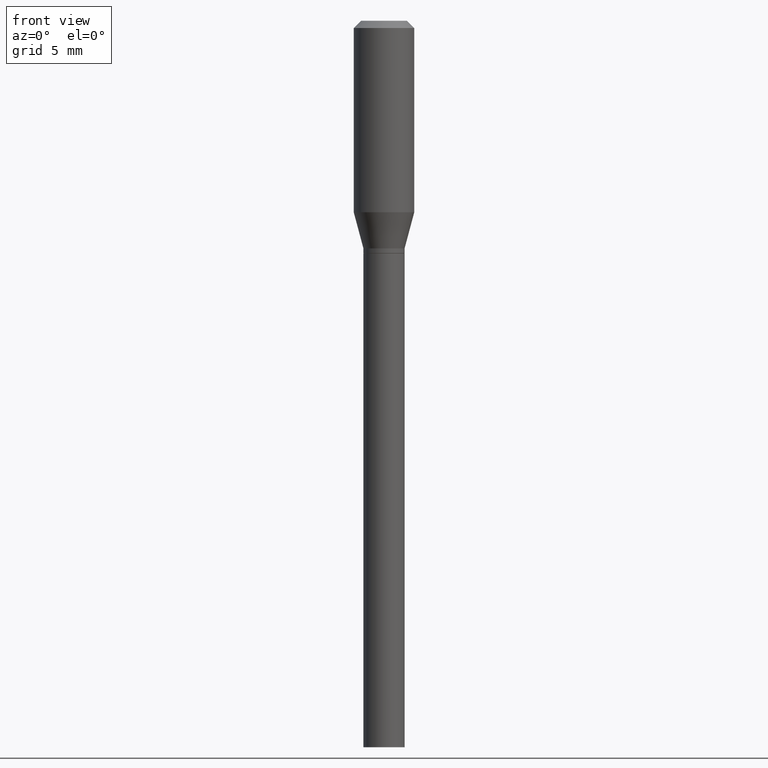
[diagram: clean part render]
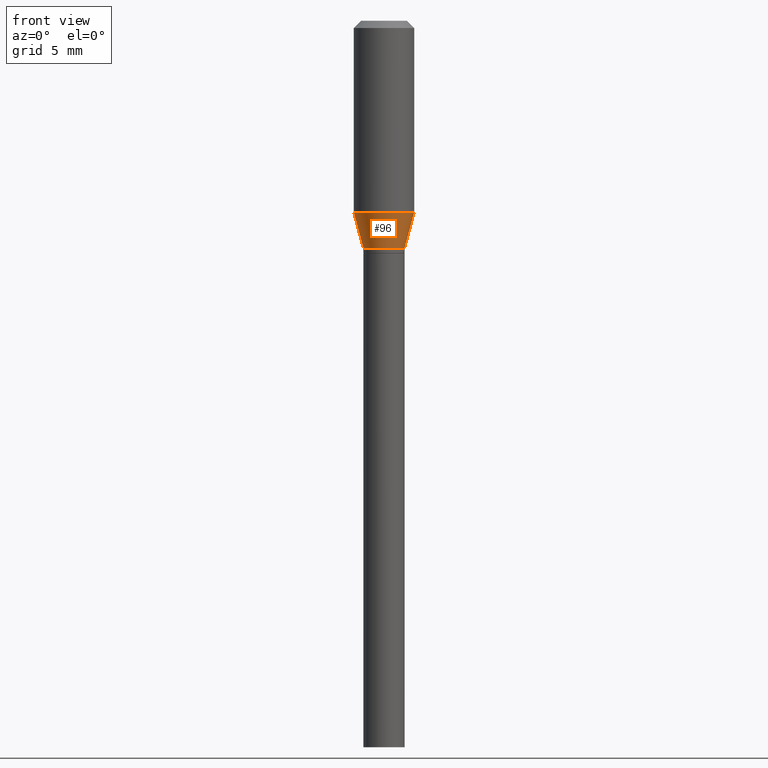
[diagram: same view with one face highlighted and labeled with its STEP entity id]
A machine part, front view. The second image highlights one B-rep face of the part: STEP entity #96.
In plain terms, the highlighted conical surface has half-angle 15 deg.
Its self-contained STEP definition (entity closure, byte-faithful):
#2 = LINE ( 'NONE', #190, #276 ) ;
#3 = CIRCLE ( 'NONE', #255, 0.04249999999999994060 ) ;
#5 = DIRECTION ( 'NONE',  ( -2.445468806185136597E-29, 3.491481338843145583E-15, 1.000000000000000000 ) ) ;
#17 = EDGE_CURVE ( 'NONE', #189, #72, #3, .T. ) ;
#18 = EDGE_LOOP ( 'NONE', ( #338, #293, #241, #162 ) ) ;
#51 = CARTESIAN_POINT ( 'NONE',  ( -0.04249999999999994060, -1.137657435479813503E-15, -0.4700000000000000289 ) ) ;
#52 = DIRECTION ( 'NONE',  ( 1.000000000000000000, -6.982962677686269077E-15, 0.000000000000000000 ) ) ;
#61 = AXIS2_PLACEMENT_3D ( 'NONE', #159, #375, #52 ) ;
#72 = VERTEX_POINT ( 'NONE', #329 ) ;
#75 = EDGE_CURVE ( 'NONE', #189, #316, #2, .T. ) ;
#86 = EDGE_CURVE ( 'NONE', #316, #260, #236, .T. ) ;
#89 = CARTESIAN_POINT ( 'NONE',  ( 9.668380622468593325E-30, -1.380388514251453836E-15, -0.3953589838486224473 ) ) ;
#96 = ADVANCED_FACE ( 'NONE', ( #339 ), #304, .T. ) ;
#157 = DIRECTION ( 'NONE',  ( 0.2588190451025212391, 1.565188264969622362E-15, 0.9659258262890679791 ) ) ;
#159 = CARTESIAN_POINT ( 'NONE',  ( 1.149370338907014223E-29, -1.640996229256278436E-15, -0.4700000000000000289 ) ) ;
#162 = ORIENTED_EDGE ( 'NONE', *, *, #86, .F. ) ;
#189 = VERTEX_POINT ( 'NONE', #51 ) ;
#190 = CARTESIAN_POINT ( 'NONE',  ( -0.04249999999999994060, -1.339015566558236180E-15, -0.4700000000000000289 ) ) ;
#201 = AXIS2_PLACEMENT_3D ( 'NONE', #89, #5, #403 ) ;
#226 = DIRECTION ( 'NONE',  ( -0.2588190451025212391, 5.211531920934549464E-15, 0.9659258262890679791 ) ) ;
#228 = LINE ( 'NONE', #412, #431 ) ;
#236 = CIRCLE ( 'NONE', #201, 0.06250000000000000000 ) ;
#241 = ORIENTED_EDGE ( 'NONE', *, *, #340, .T. ) ;
#245 = DIRECTION ( 'NONE',  ( 1.000000000000000000, -6.982962677686269077E-15, 0.000000000000000000 ) ) ;
#255 = AXIS2_PLACEMENT_3D ( 'NONE', #284, #426, #245 ) ;
#260 = VERTEX_POINT ( 'NONE', #382 ) ;
#276 = VECTOR ( 'NONE', #226, 39.37007874015748854 ) ;
#284 = CARTESIAN_POINT ( 'NONE',  ( 1.149370338907014223E-29, -1.640996229256278436E-15, -0.4700000000000000289 ) ) ;
#293 = ORIENTED_EDGE ( 'NONE', *, *, #17, .T. ) ;
#299 = CARTESIAN_POINT ( 'NONE',  ( -0.06250000000000000000, -9.362993044013910222E-16, -0.3953589838486224473 ) ) ;
#304 = CONICAL_SURFACE ( 'NONE', #61, 0.04249999999999994060, 0.2617993877991499629 ) ;
#316 = VERTEX_POINT ( 'NONE', #299 ) ;
#329 = CARTESIAN_POINT ( 'NONE',  ( 0.04249999999999994060, -1.937772143057944692E-15, -0.4700000000000000289 ) ) ;
#338 = ORIENTED_EDGE ( 'NONE', *, *, #75, .F. ) ;
#339 = FACE_OUTER_BOUND ( 'NONE', #18, .T. ) ;
#340 = EDGE_CURVE ( 'NONE', #72, #260, #228, .T. ) ;
#375 = DIRECTION ( 'NONE',  ( -2.445468806185136597E-29, 3.491481338843145583E-15, 1.000000000000000000 ) ) ;
#382 = CARTESIAN_POINT ( 'NONE',  ( 0.06250000000000000000, -1.816823681606845702E-15, -0.3953589838486224473 ) ) ;
#403 = DIRECTION ( 'NONE',  ( 1.000000000000000000, -6.982962677686266711E-15, 0.000000000000000000 ) ) ;
#412 = CARTESIAN_POINT ( 'NONE',  ( 0.04249999999999994060, -1.937772143057944692E-15, -0.4700000000000000289 ) ) ;
#426 = DIRECTION ( 'NONE',  ( -2.445468806185136597E-29, 3.491481338843145583E-15, 1.000000000000000000 ) ) ;
#431 = VECTOR ( 'NONE', #157, 39.37007874015748854 ) ;